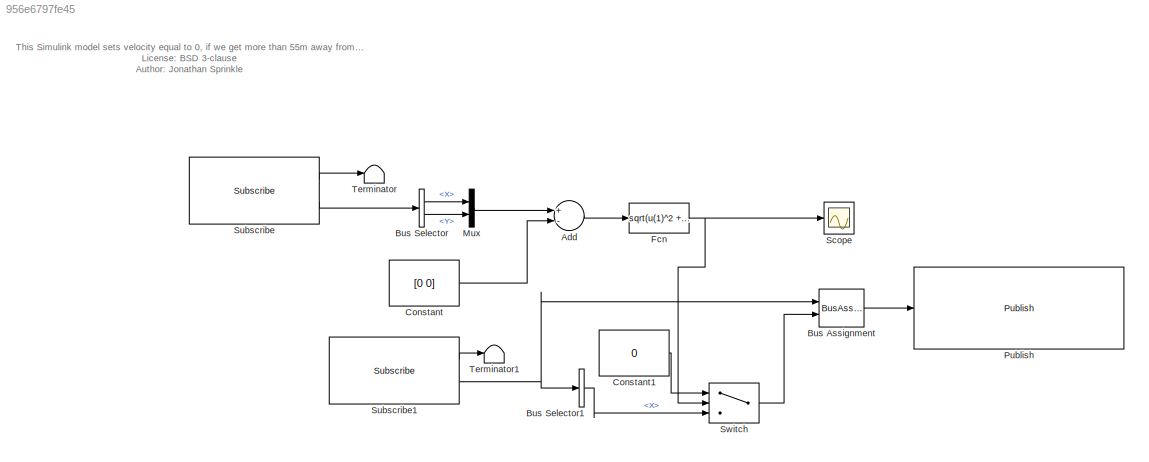
MODEL slx_956e6797fe45
KIND model
CONFIG AbsTol = auto
CONFIG FixedStep = auto
CONFIG MaxStep = auto
CONFIG MinStep = auto
CONFIG RelTol = 1e-3
CONFIG SampleTimeConstraint = Unconstrained
CONFIG Solver = FixedStepAuto
CONFIG SolverMode = Auto
CONFIG SolverName = FixedStepAuto
CONFIG StartTime = 0.0
CONFIG StopTime = inf
WORKSPACE source: MAT-file member
WORKSPACE SL_ROS_VariableLengthArrays_MaxSizes: struct (value not decoded)
BLOCK [Sum] Add
  InputSameDT = off
  Inputs = +-
  OutDataTypeStr = Inherit: Inherit via internal rule
  Ports = [2, 1]
  SaturateOnIntegerOverflow = off
BLOCK [BusAssignment] Bus Assignment
  AssignedSignals = Linear.X
  Ports = [2, 1]
BLOCK [BusSelector] Bus Selector
  OutputSignals = Pose.Pose.Position.X,Pose.Pose.Position.Y
  Ports = [1, 2]
BLOCK [BusSelector] Bus Selector1
  OutputSignals = Linear.X
  Ports = [1, 1]
BLOCK [Constant] Constant
  Value = [0 0]
BLOCK [Constant] Constant1
  Value = 0
BLOCK [Fcn] Fcn
  Expr = sqrt(u(1)^2 + u(2)^2)
BLOCK [Mux] Mux
  DisplayOption = bar
  Inputs = 2
  Ports = [2, 1]
BLOCK [Reference] Publish  REF=robotlib/Publish
  Ports = [1]
  SourceBlock = robotlib/Publish
  SourceLibraryInfo = This block requires Robotics System Toolbox
  SourceType = ROS Publish
BLOCK [Scope] Scope
  Ports = [1]
  ScopeSpecificationString = Simulink.scopes.TimeScopeBlockCfg('CurrentConfiguration', extmgr.ConfigurationSet(extmgr.Configuration('Core','General UI',true),extmgr.Configuration('Core','Source UI',true),extmgr.Configuration('Sources','WiredSimulink',true),extmgr.Configuration('Visuals','Time Domain',true,'SerializedDisplays',{struct('MinYLimReal','35.05743','MaxYLimReal','41.00352','YLabelReal','','MinYLimMag','35.05743','Ma...<+1384ch>
BLOCK [Reference] Subscribe  REF=robotlib/Subscribe
  Ports = [0, 2]
  SourceBlock = robotlib/Subscribe
  SourceLibraryInfo = This block requires Robotics System Toolbox
  SourceType = ROS Subscribe
BLOCK [Reference] Subscribe1  REF=robotlib/Subscribe
  Ports = [0, 2]
  SourceBlock = robotlib/Subscribe
  SourceLibraryInfo = This block requires Robotics System Toolbox
  SourceType = ROS Subscribe
BLOCK [Switch] Switch
  Criteria = u2 > Threshold
  InputSameDT = off
  SaturateOnIntegerOverflow = off
  Threshold = 55
BLOCK [Terminator] Terminator
BLOCK [Terminator] Terminator1
ANNOTATION (root): This Simulink model sets velocity equal to 0, if we get more than 55m away from the origin (0,0). In order to use this with an existing velocity controller, you should remap that controller's /catvehicle/cmd_vel to match the input /catvehicle/cmd_vel_task4 for this model. License: BSD 3-clause Author: Jonathan Sprinkle
LINE Add:1 -> Fcn:1
LINE Bus Assignment:1 -> Publish:1
LINE Bus Selector1:1 -> Switch:3
LINE Bus Selector:1 -> Mux:1
LINE Bus Selector:2 -> Mux:2
LINE Constant1:1 -> Switch:1
LINE Constant:1 -> Add:2
NET Fcn:1 -> Scope:1, Switch:2
LINE Mux:1 -> Add:1
LINE Subscribe1:1 -> Terminator1:1
NET Subscribe1:2 -> Bus Assignment:1, Bus Selector1:1
LINE Subscribe:1 -> Terminator:1
LINE Subscribe:2 -> Bus Selector:1
LINE Switch:1 -> Bus Assignment:2
note: NET lines group one-source signal fan-out (src -> all destinations, sorted); 1:1 wires keep LINE
